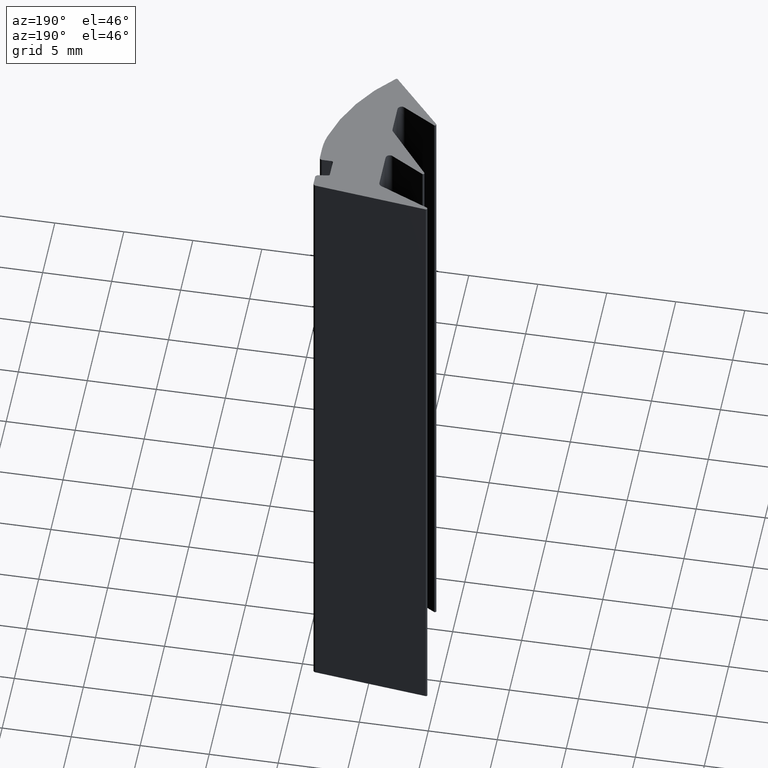
[diagram: clean part render]
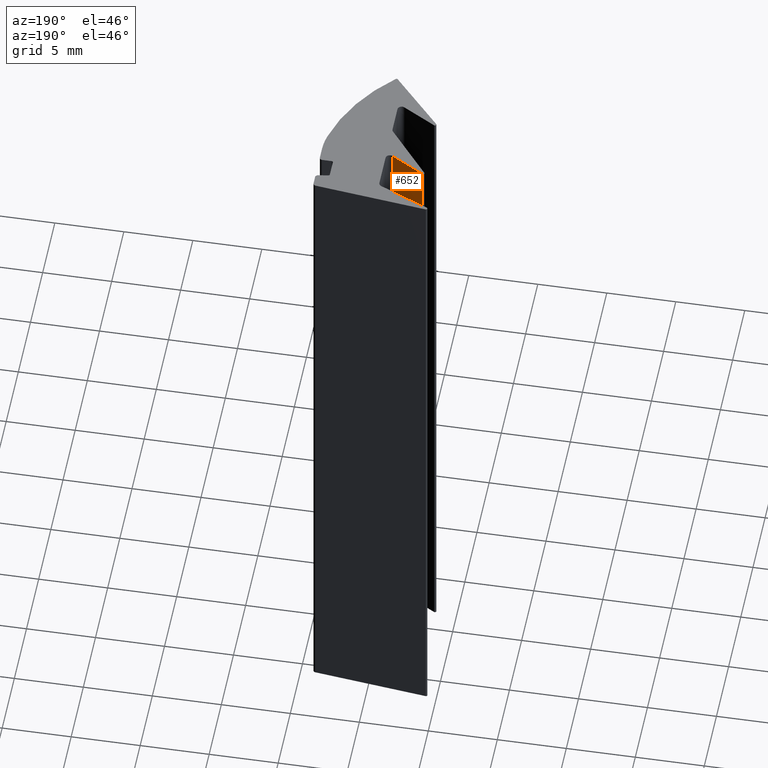
[diagram: same view with one face highlighted and labeled with its STEP entity id]
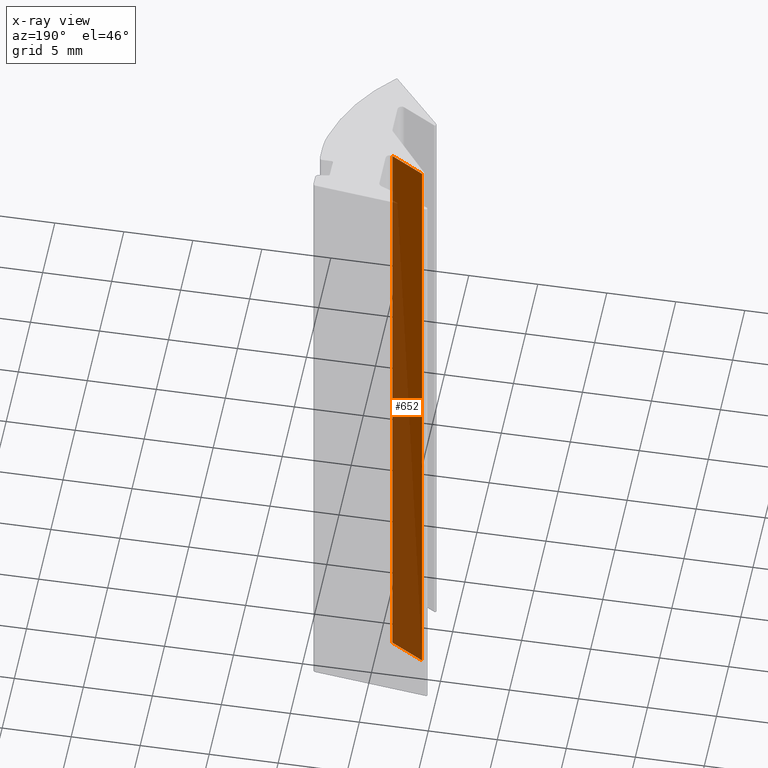
[diagram: x-ray of the same camera — body ghosted, the highlighted face saturated]
A machine part, auxiliary view. The second image highlights one B-rep face of the part: STEP entity #652.
The next image is the same camera in x-ray: the body ghosted, the highlighted face saturated — about 54% of this face is hidden behind the body in this view.
In plain terms, the highlighted planar face has unit normal (0.5, 0.866, 0).
Its self-contained STEP definition (entity closure, byte-faithful):
#594=CARTESIAN_POINT('',(-1.090388909991648,7.570649813860942,0.0));
#595=VERTEX_POINT('',#594);
#603=CARTESIAN_POINT('',(-1.090388909991648,7.570649813860942,50.0));
#604=VERTEX_POINT('',#603);
#605=CARTESIAN_POINT('',(-1.090388909991648,7.570649813860942,0.0));
#606=DIRECTION('',(0.0,0.0,1.0));
#607=VECTOR('',#606,50.0);
#608=LINE('',#605,#607);
#609=EDGE_CURVE('',#595,#604,#608,.T.);
#622=CARTESIAN_POINT('',(-1.090388909991648,7.570649813860942,0.0));
#623=DIRECTION('',(0.499999999999996,0.866025403784441,0.0));
#624=DIRECTION('',(-0.866025403784441,0.499999999999996,0.0));
#625=AXIS2_PLACEMENT_3D('',#622,#623,#624);
#626=PLANE('',#625);
#627=CARTESIAN_POINT('',(-3.485061207719033,8.953214509574771,0.0));
#628=VERTEX_POINT('',#627);
#629=CARTESIAN_POINT('',(-1.090388909991648,7.570649813860942,0.0));
#630=DIRECTION('',(-0.866025403784441,0.499999999999996,0.0));
#631=VECTOR('',#630,2.765129391427683);
#632=LINE('',#629,#631);
#633=EDGE_CURVE('',#595,#628,#632,.T.);
#634=ORIENTED_EDGE('',*,*,#633,.T.);
#635=CARTESIAN_POINT('',(-3.485061207719033,8.953214509574771,50.0));
#636=VERTEX_POINT('',#635);
#637=CARTESIAN_POINT('',(-3.485061207719033,8.953214509574771,0.0));
#638=DIRECTION('',(0.0,0.0,1.0));
#639=VECTOR('',#638,50.0);
#640=LINE('',#637,#639);
#641=EDGE_CURVE('',#628,#636,#640,.T.);
#642=ORIENTED_EDGE('',*,*,#641,.T.);
#643=CARTESIAN_POINT('',(-1.090388909991648,7.570649813860942,50.0));
#644=DIRECTION('',(-0.866025403784441,0.499999999999996,0.0));
#645=VECTOR('',#644,2.765129391427683);
#646=LINE('',#643,#645);
#647=EDGE_CURVE('',#604,#636,#646,.T.);
#648=ORIENTED_EDGE('',*,*,#647,.F.);
#649=ORIENTED_EDGE('',*,*,#609,.F.);
#650=EDGE_LOOP('',(#634,#642,#648,#649));
#651=FACE_OUTER_BOUND('',#650,.T.);
#652=ADVANCED_FACE('',(#651),#626,.T.);